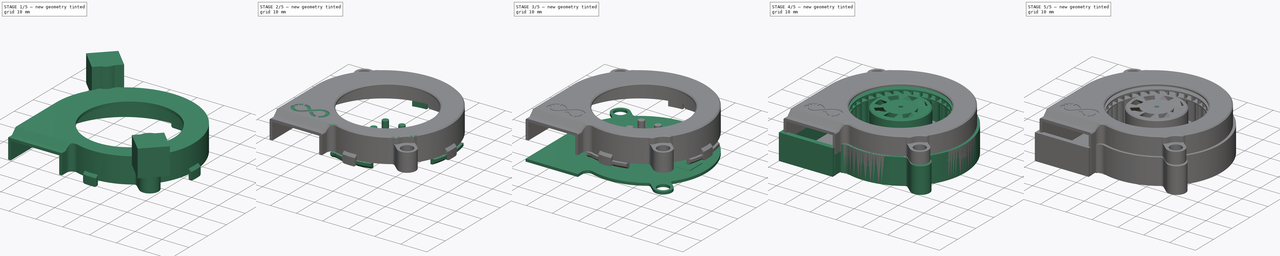
[diagram: build sequence overview — one tinted view per stage of 5, left to right]
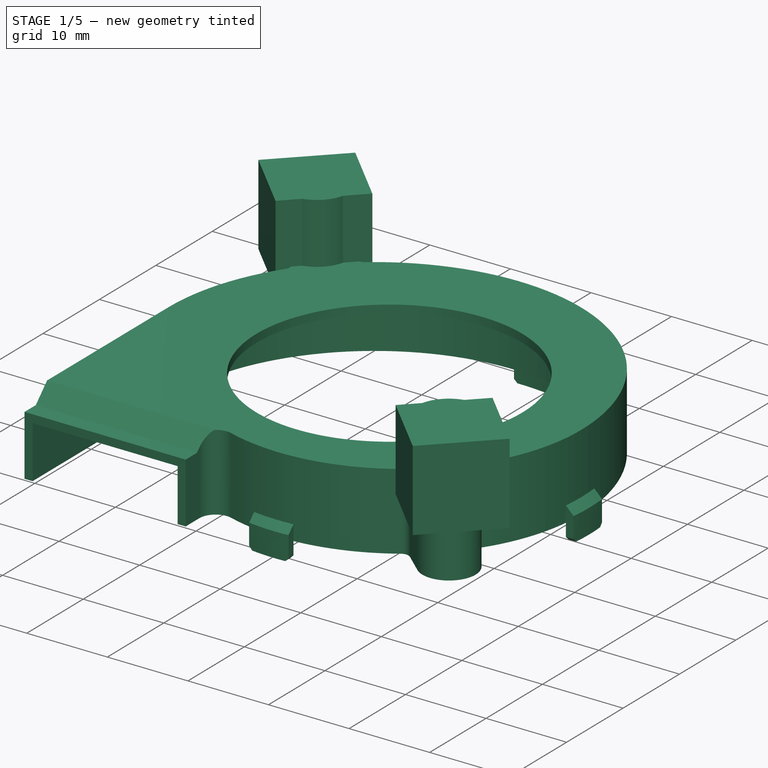
[diagram: stage 1 of 5 — iso view after this stage's code; geometry added in this stage tinted green]
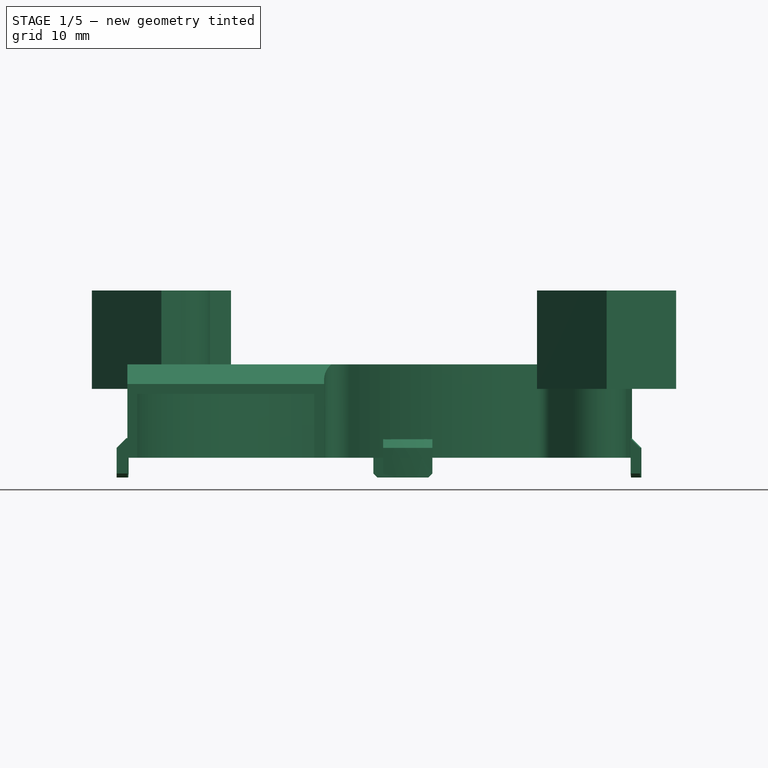
[diagram: stage 1 of 5 — front view after this stage's code; geometry added in this stage tinted green]
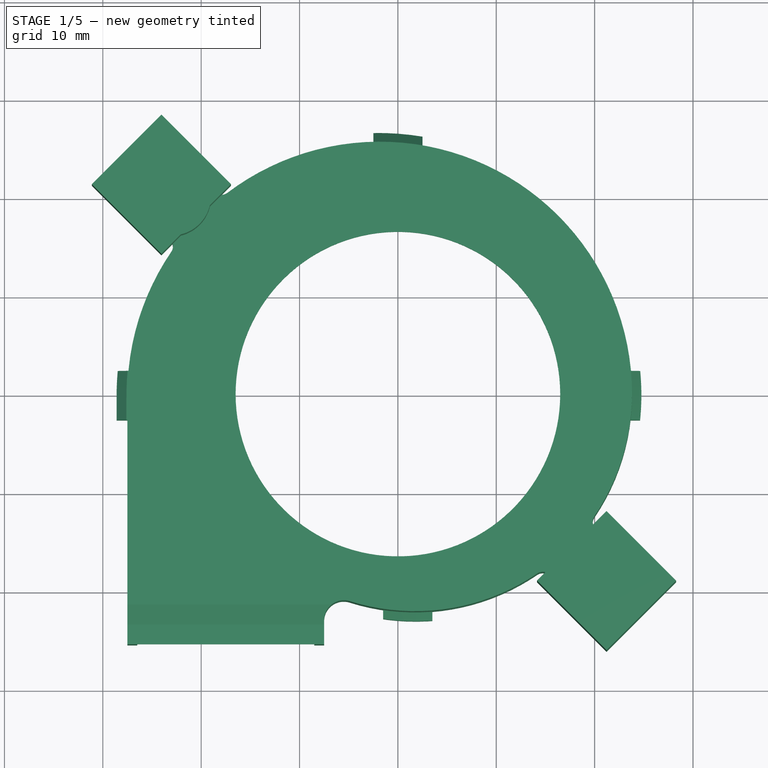
[diagram: stage 1 of 5 — top view after this stage's code; geometry added in this stage tinted green]
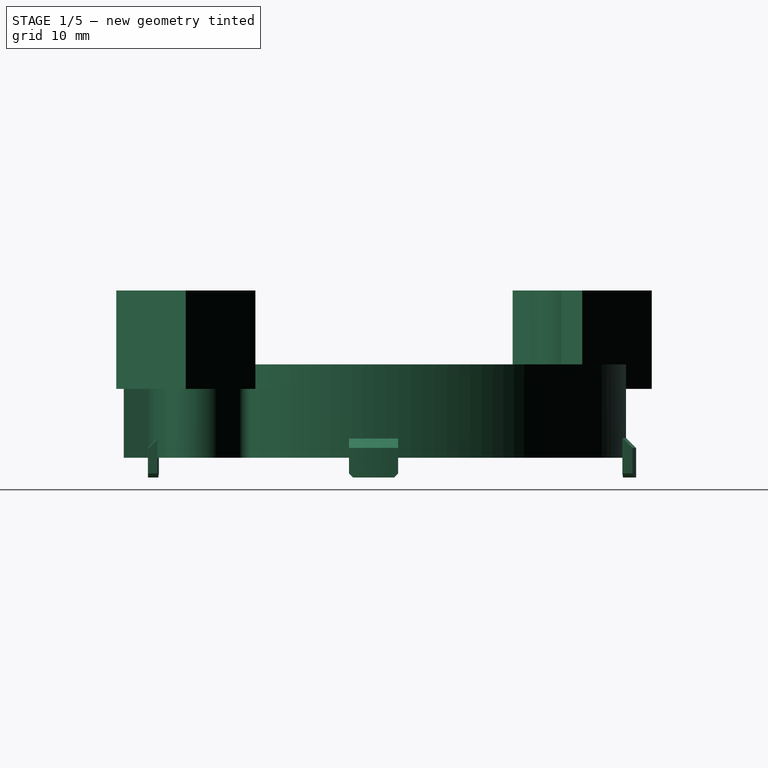
[diagram: stage 1 of 5 — right view after this stage's code; geometry added in this stage tinted green]
FCSTD DOCUMENT  (FreeCAD 0.19R24291 (Git))
Label: 5015-1103-fan
License: Other
LicenseURL: GPL3
objects: Part::Feature×40, Part::Cylinder×34, Part::MultiFuse×24, Part::Box×24, Part::Cut×16, Part::Chamfer×10, Sketcher::SketchObject×8, PartDesign::Plane×6, Part::Extrusion×5, PartDesign::Pad×5, PartDesign::Chamfer×5, Part::MultiCommon×4, PartDesign::Body×3, PartDesign::Pocket×3, PartDesign::PolarPattern×3, Part::Fillet×3, App::Part×2, PartDesign::Fillet×1, Spreadsheet::Sheet×1
note: 208 computed .brp shape members not serialized (recipe doc carries the construction recipe); baked Part::Feature solids carry a one-line shape summary decoded from their .brp

FEATURE [Part::Feature] Part__Feature004_cs003  label="wall-base-profile003"
  Placement = pos=(0,0,3.5) rot=(0,0,1;0rad)
  shape: bbox 51.3 x 51.07 x 3e-07 mm, 0 faces, 0 solids (baked)
FEATURE [Part::Extrusion] Extrude004
  Base = -> Part__Feature004_cs003
  Dir = (0,0,1)
  DirMode = 2
  FaceMakerClass = Part::FaceMakerBullseye
  LengthFwd = 8.5
  LengthRev = 0
  Solid = true
  Symmetric = false
FEATURE [Part::Feature] Fusion001_cs003  label="flat-base-profile003"
  Placement = pos=(0,0,14) rot=(0,0,1;0rad)
  shape: bbox 51.3 x 51.07 x 4e-07 mm, 0 faces, 0 solids (baked)
FEATURE [Part::Extrusion] Extrude005
  Base = -> Fusion001_cs003
  Dir = (0,0,1)
  DirMode = 2
  FaceMakerClass = Part::FaceMakerBullseye
  LengthFwd = 1
  LengthRev = 0
  Placement = pos=(0,0,2) rot=(0,0,1;0rad)
  Solid = true
  Symmetric = false
FEATURE [Part::Cylinder] Cylinder042
  Angle = 360
  AttacherType = Attacher::AttachEngine3D
  Height = 21
  Radius = 16.5
FEATURE [Part::Box] Box006  label="Cube006"
  AttacherType = Attacher::AttachEngine3D
  Height = 10
  Length = 22
  Placement = pos=(-27.5,-25.4,14) rot=(0,0,1;0rad)
  Width = 5
FEATURE [Part::Feature] Fusion001_cs005  label="flat-base-profile005"
  Placement = pos=(0,0,14) rot=(0,0,1;0rad)
  shape: bbox 51.3 x 51.07 x 4e-07 mm, 0 faces, 0 solids (baked)
FEATURE [Part::MultiFuse] Fusion033
  Shapes = -> [Extrude005,Extrude004]
FEATURE [Part::Cut] Cut031
  Base = -> Fusion033
  Tool = -> Cylinder042
FEATURE [Part::Extrusion] Extrude001002
  Base = -> Fusion001_cs005
  Dir = (0,0,1)
  DirMode = 2
  FaceMakerClass = Part::FaceMakerBullseye
  LengthFwd = 3
  LengthRev = 0
  Solid = true
  Symmetric = false
FEATURE [Part::Cylinder] Cylinder046
  Angle = 360
  AttacherType = Attacher::AttachEngine3D
  Height = 10
  Placement = pos=(-23,20,14.5) rot=(0,0,1;0rad)
  Radius = 4
FEATURE [Part::Cylinder] Cylinder047
  Angle = 360
  AttacherType = Attacher::AttachEngine3D
  Height = 10
  Placement = pos=(20,-18,14.5) rot=(0,0,1;0rad)
  Radius = 4
FEATURE [Part::MultiFuse] Fusion035
  Shapes = -> [Cylinder046,Cylinder047]
FEATURE [Part::Box] Box009  label="Cube009"
  AttacherType = Attacher::AttachEngine3D
  Height = 10
  Length = 10
  Placement = pos=(-31.1127,21.2132,14.5) rot=(0,0,-1;0.785398rad)
  Width = 10
FEATURE [Part::Box] Box010  label="Cube010"
  AttacherType = Attacher::AttachEngine3D
  Height = 10
  Length = 10
  Placement = pos=(14.1421,-19.0919,14.5) rot=(0,0,-1;0.785398rad)
  Width = 10
FEATURE [Part::MultiFuse] Fusion036
  Shapes = -> [Box010,Box009]
FEATURE [Part::MultiFuse] Fusion037
  Shapes = -> [Fusion035,Fusion036]
FEATURE [Part::Chamfer] Chamfer004011
  Base = -> Box006
  Edges = 1 edges r=2: [Edge11]
FEATURE [Part::MultiCommon] Common002
  Shapes = -> [Extrude001002,Chamfer004011]
FEATURE [Part::Feature] Common002001
  Placement = pos=(0,-1,1) rot=(0,0,1;0rad)
  shape: bbox 22 x 5 x 3 mm, 9 faces (baked)
FEATURE [Part::MultiFuse] Fusion038
  Shapes = -> [Common002,Cut031]
FEATURE [Part::Cut] Cut032
  Base = -> Fusion038
  Tool = -> Common002001
FEATURE [Part::Feature] Common002003002003  label="ring005"
  Placement = pos=(0,0,2) rot=(0,0,1;0rad)
  shape: bbox 54.41 x 80.12 x 10 mm, 38 faces (baked)
FEATURE [Part::Feature] Common002003002004  label="ring006"
  shape: bbox 54.41 x 80.12 x 10 mm, 37 faces (baked)
FEATURE [Part::MultiFuse] Fusion044  label="top-gasket"
  Shapes = -> [Common002003002003,Common002003002004]
FEATURE [Part::Box] Box011006  label="Cube014"
  AttacherType = Attacher::AttachEngine3D
  Height = 10
  Length = 10
  Placement = pos=(-33,-2.5,0) rot=(0,0,1;0rad)
  Width = 5
FEATURE [Part::Box] Box011009  label="Cube017"
  AttacherType = Attacher::AttachEngine3D
  Height = 10
  Length = 10
  Placement = pos=(20,-2.5,0) rot=(0,0,1;0rad)
  Width = 5
FEATURE [Part::Box] Box011012  label="Cube020"
  AttacherType = Attacher::AttachEngine3D
  Height = 10
  Length = 5
  Placement = pos=(-2.5,20,0) rot=(0,0,1;0rad)
  Width = 10
FEATURE [Part::Box] Box011017  label="Cube025"
  AttacherType = Attacher::AttachEngine3D
  Height = 10
  Length = 5
  Placement = pos=(-1.5,-26,0) rot=(0,0,1;0rad)
  Width = 10
FEATURE [Part::MultiFuse] Fusion048008  label="inner-clip"
  Shapes = -> [Box011006,Box011017,Box011009,Box011012]
FEATURE [Part::MultiCommon] Common002003002006
  Placement = pos=(0,0,5.5) rot=(0,0,1;0rad)
  Refine = true
  Shapes = -> [Fusion048008,Fusion044]
FEATURE [Part::Chamfer] Chamfer004014012
  Base = -> Common002003002006
  Edges = 6 edges r=1: [Edge21,Edge22,Edge43,Edge68,Edge70,Edge100]
FEATURE [Part::Chamfer] Chamfer004014013
  Base = -> Chamfer004014012
  Edges = 8 edges r=0.4: [Edge5,Edge28,Edge40,Edge56,Edge64,Edge81,Edge103,Edge122]
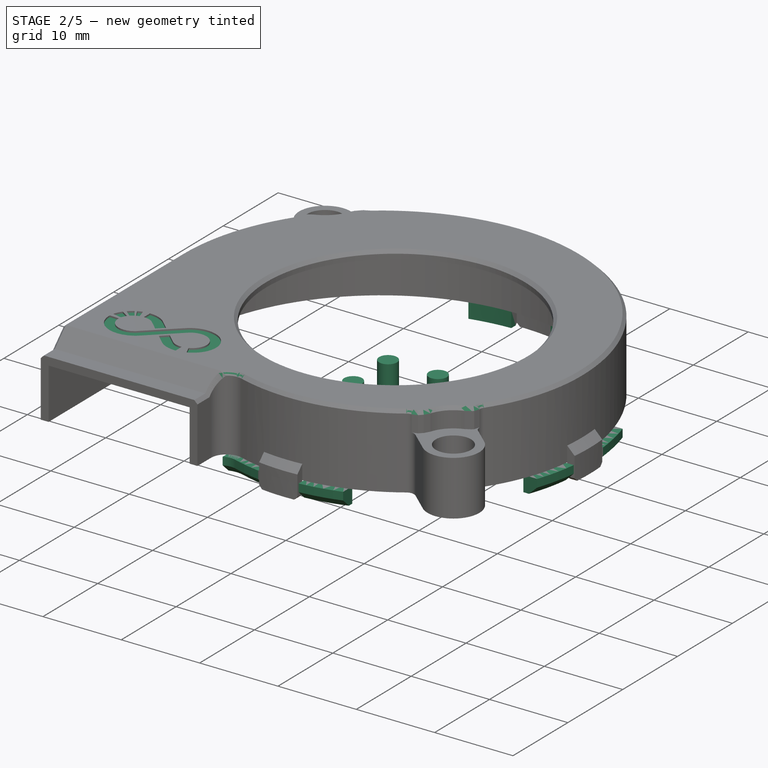
[diagram: stage 2 of 5 — iso view after this stage's code; geometry added in this stage tinted green]
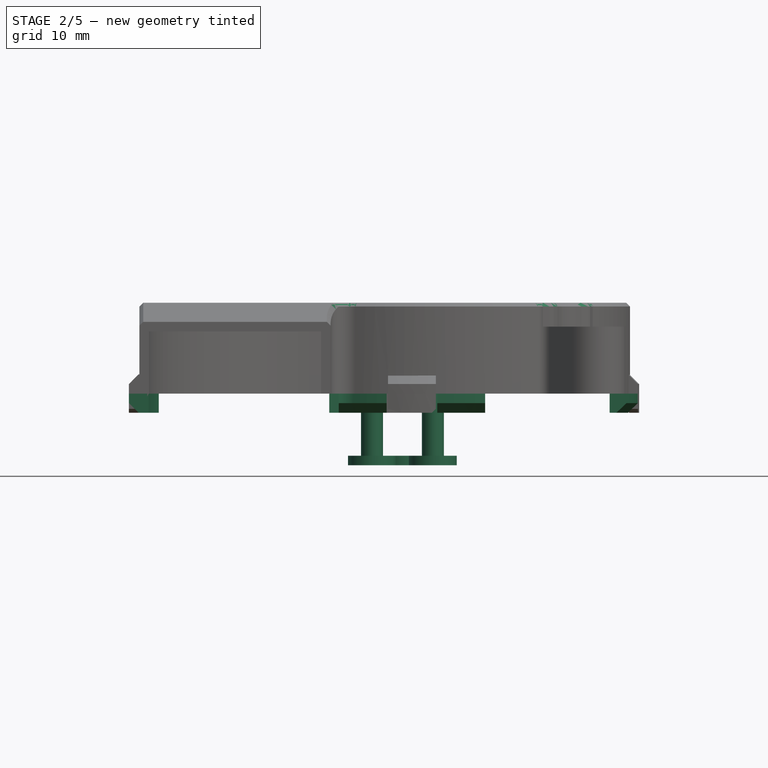
[diagram: stage 2 of 5 — front view after this stage's code; geometry added in this stage tinted green]
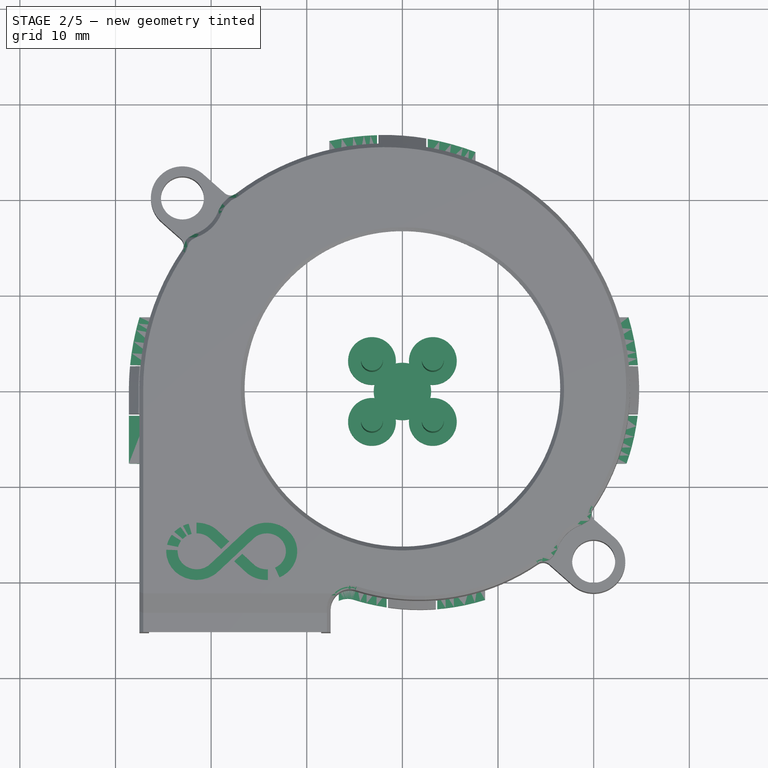
[diagram: stage 2 of 5 — top view after this stage's code; geometry added in this stage tinted green]
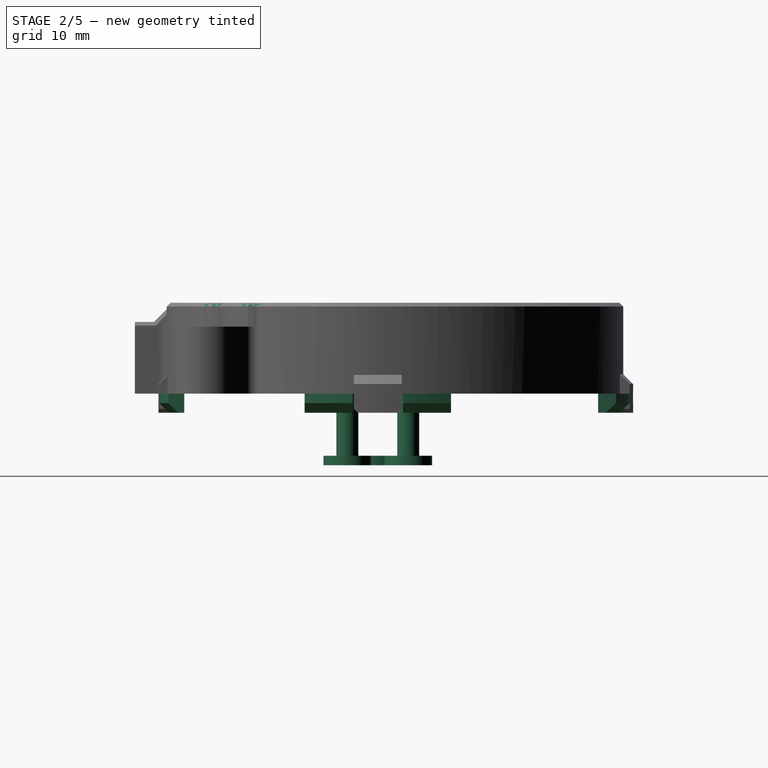
[diagram: stage 2 of 5 — right view after this stage's code; geometry added in this stage tinted green]
FEATURE [Part::Cut] Cut033
  Base = -> Cut032
  Refine = true
  Tool = -> Fusion037
FEATURE [Part::Chamfer] Chamfer004012
  Base = -> Cut033
  Edges = 32 edges r=0.4: [Edge67,Edge71,Edge72,Edge74,Edge76,Edge77,Edge78,Edge81,Edge83,Edge84,Edge85,Edge86,Edge87,Edge88,Edge89,Edge90,Edge91,Edge92,Edge93,Edge94,Edge95,Edge96,Edge97,Edge98,Edge99,Edge101,Edge103,Edge104,Edge106,Edge108,Edge110,Edge112]
FEATURE [Part::Fillet] Fillet001001017
  Base = -> Chamfer004012
  Edges = 2 edges r=0.2: [Edge7,Edge52]
FEATURE [Part::Feature] Common002003002001  label="ring003"
  shape: bbox 54.41 x 80.12 x 10 mm, 38 faces (baked)
FEATURE [Part::Feature] Common002003002002  label="ring004"
  Placement = pos=(0,0,2) rot=(0,0,1;0rad)
  shape: bbox 54.41 x 80.12 x 10 mm, 37 faces (baked)
FEATURE [Part::MultiFuse] Fusion043  label="bottom-gasket"
  Shapes = -> [Common002003002002,Common002003002001]
FEATURE [Part::Feature] Chamfer004014001
  shape: bbox 51.3 x 51.07 x 7.501 mm, 108 faces (baked)
FEATURE [Part::Feature] Fillet001001017001
  shape: bbox 51.3 x 51.07 x 9.733 mm, 82 faces (baked)
FEATURE [Part::Cylinder] Cylinder050
  Angle = 360
  AttacherType = Attacher::AttachEngine3D
  Height = 1
  Placement = pos=(-3.18198,3.18198,0) rot=(0,0,1;0.785398rad)
  Radius = 2.5
FEATURE [Part::Cylinder] Cylinder051
  Angle = 360
  AttacherType = Attacher::AttachEngine3D
  Height = 1
  Placement = pos=(3.18198,3.18198,0) rot=(0,0,-1;0.785398rad)
  Radius = 2.5
FEATURE [Part::Cylinder] Cylinder052
  Angle = 360
  AttacherType = Attacher::AttachEngine3D
  Height = 1
  Placement = pos=(-3.18198,-3.18198,0) rot=(0,0,1;3.92699rad)
  Radius = 2.5
FEATURE [Part::Cylinder] Cylinder053
  Angle = 360
  AttacherType = Attacher::AttachEngine3D
  Height = 1
  Placement = pos=(3.18198,-3.18198,0) rot=(0,0,1;3.92699rad)
  Radius = 2.5
FEATURE [Part::Cylinder] Cylinder054
  Angle = 360
  AttacherType = Attacher::AttachEngine3D
  Height = 10
  Placement = pos=(3.18198,-3.18198,0) rot=(0,0,1;3.92699rad)
  Radius = 1.15
FEATURE [Part::Cylinder] Cylinder055
  Angle = 360
  AttacherType = Attacher::AttachEngine3D
  Height = 10
  Placement = pos=(-3.18198,-3.18198,0) rot=(0,0,1;3.92699rad)
  Radius = 1.15
FEATURE [Part::Cylinder] Cylinder056
  Angle = 360
  AttacherType = Attacher::AttachEngine3D
  Height = 10
  Placement = pos=(3.18198,3.18198,0) rot=(0,0,-1;0.785398rad)
  Radius = 1.15
FEATURE [Part::Cylinder] Cylinder057
  Angle = 360
  AttacherType = Attacher::AttachEngine3D
  Height = 10
  Placement = pos=(-3.18198,3.18198,0) rot=(0,0,1;0.785398rad)
  Radius = 1.15
FEATURE [Part::MultiFuse] Fusion048005
  Shapes = -> [Cylinder057,Cylinder056,Cylinder055,Cylinder054,Cylinder053,Cylinder052,Cylinder051,Cylinder050]
FEATURE [Part::Cylinder] Cylinder058
  Angle = 360
  AttacherType = Attacher::AttachEngine3D
  Height = 1
  Radius = 3
FEATURE [Part::MultiFuse] Fusion048006  label="bolt-slot-wider"
  Shapes = -> [Fusion048005,Cylinder058]
FEATURE [Part::Cut] Cut036006002001008  label="top-r1"
  Base = -> Fillet001001017
  Tool = -> snakeoil_logo_1_001001_solid
FEATURE [Part::Box] Box011007  label="Cube015"
  AttacherType = Attacher::AttachEngine3D
  Height = 10
  Length = 10
  Placement = pos=(-33,2.65,0) rot=(0,0,1;0rad)
  Width = 5
FEATURE [Part::Box] Box011008  label="Cube016"
  AttacherType = Attacher::AttachEngine3D
  Height = 10
  Length = 10
  Placement = pos=(-33,-7.65,0) rot=(0,0,1;0rad)
  Width = 5
FEATURE [Part::Box] Box011010  label="Cube018"
  AttacherType = Attacher::AttachEngine3D
  Height = 10
  Length = 10
  Placement = pos=(20,2.65,0) rot=(0,0,1;0rad)
  Width = 5
FEATURE [Part::Box] Box011011  label="Cube019"
  AttacherType = Attacher::AttachEngine3D
  Height = 10
  Length = 10
  Placement = pos=(20,-7.65,0) rot=(0,0,1;0rad)
  Width = 5
FEATURE [Part::Box] Box011013  label="Cube021"
  AttacherType = Attacher::AttachEngine3D
  Height = 10
  Length = 5
  Placement = pos=(-7.65,20,0) rot=(0,0,1;0rad)
  Width = 10
FEATURE [Part::Box] Box011014  label="Cube022"
  AttacherType = Attacher::AttachEngine3D
  Height = 10
  Length = 5
  Placement = pos=(2.65,20,0) rot=(0,0,1;0rad)
  Width = 10
FEATURE [Part::Box] Box011015  label="Cube023"
  AttacherType = Attacher::AttachEngine3D
  Height = 10
  Length = 5
  Placement = pos=(3.65,-26,0) rot=(0,0,1;0rad)
  Width = 10
FEATURE [Part::Box] Box011016  label="Cube024"
  AttacherType = Attacher::AttachEngine3D
  Height = 10
  Length = 5
  Placement = pos=(-6.65,-26,0) rot=(0,0,1;0rad)
  Width = 10
FEATURE [Part::MultiFuse] Fusion048009  label="outer-clip"
  Placement = pos=(0,0,-8) rot=(0,0,1;0rad)
  Shapes = -> [Box011016,Box011007,Box011008,Box011010,Box011011,Box011013,Box011014,Box011015]
FEATURE [Part::MultiCommon] Common002003002005
  Placement = pos=(0,0,5.5) rot=(0,0,1;0rad)
  Refine = true
  Shapes = -> [Fusion048009,Fusion043]
FEATURE [Part::Chamfer] Chamfer004014011
  Base = -> Common002003002005
  Edges = 8 edges r=1: [Edge9,Edge23,Edge35,Edge51,Edge63,Edge71,Edge83,Edge99]
FEATURE [Part::MultiFuse] Fusion048011  label="top-fit-r1"
  Shapes = -> [Chamfer004014013,Cut036006002001008]
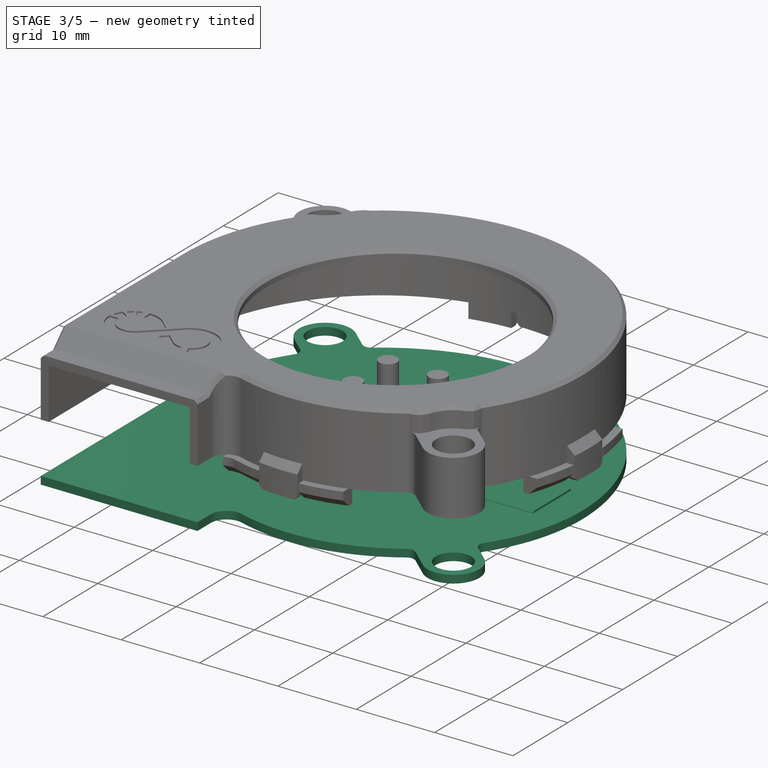
[diagram: stage 3 of 5 — iso view after this stage's code; geometry added in this stage tinted green]
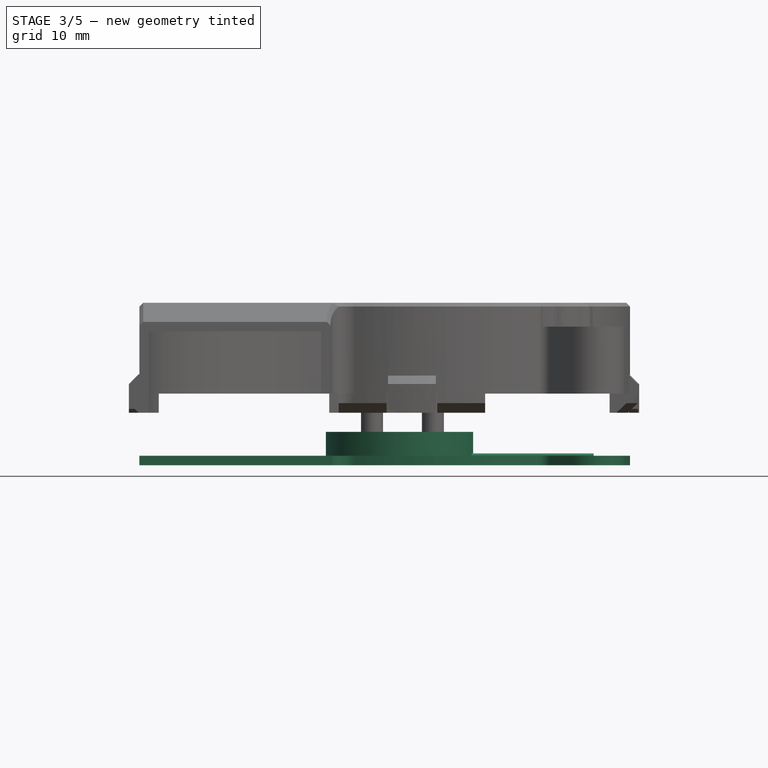
[diagram: stage 3 of 5 — front view after this stage's code; geometry added in this stage tinted green]
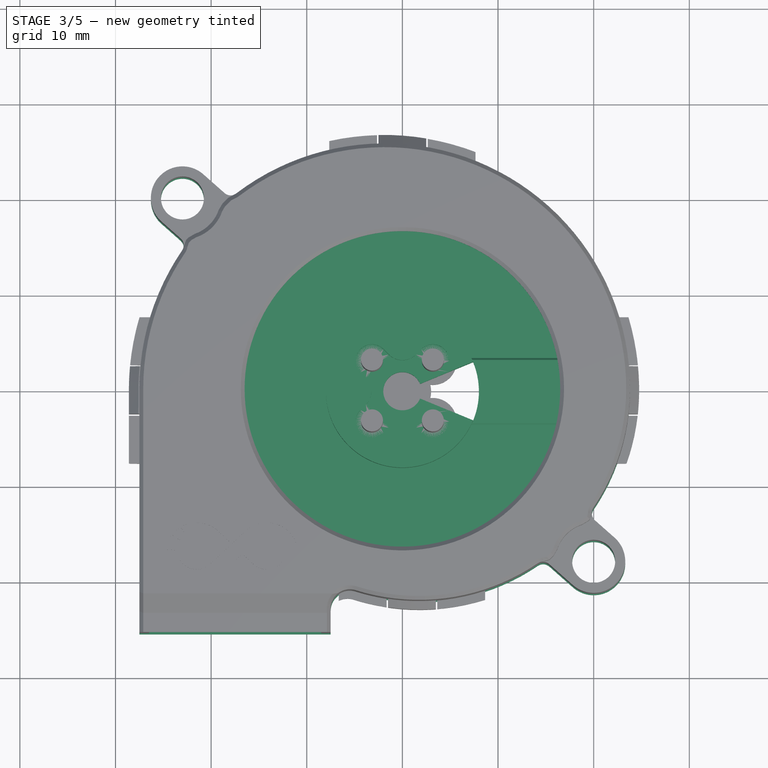
[diagram: stage 3 of 5 — top view after this stage's code; geometry added in this stage tinted green]
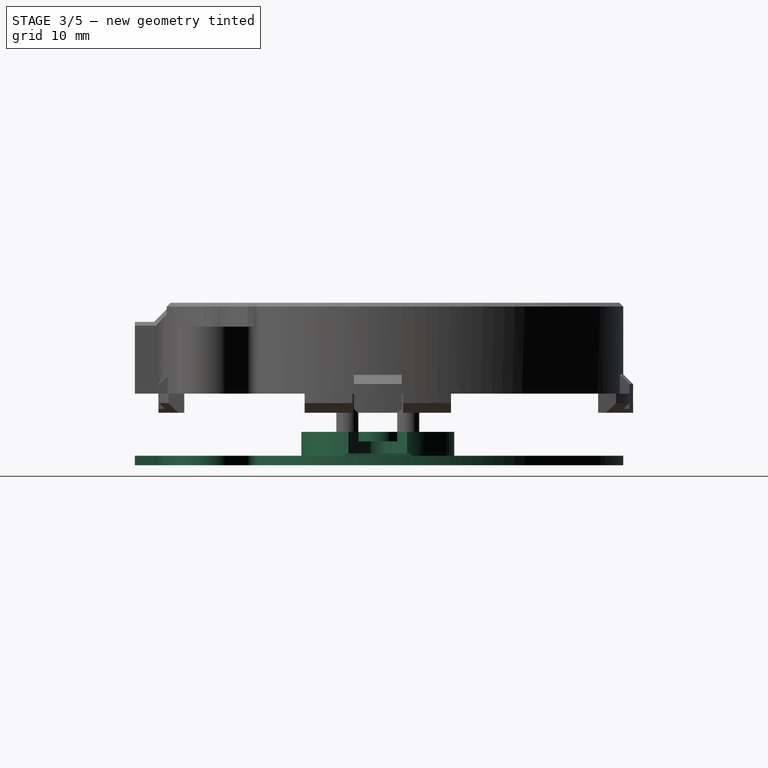
[diagram: stage 3 of 5 — right view after this stage's code; geometry added in this stage tinted green]
FEATURE [Part::Feature] Fusion001_cs  label="flat-base-profile"
  shape: bbox 51.3 x 51.07 x 4e-07 mm, 0 faces, 0 solids (baked)
FEATURE [Part::Feature] Fusion001_cs001  label="flat-base-profile001"
  shape: bbox 51.3 x 51.07 x 4e-07 mm, 0 faces, 0 solids (baked)
FEATURE [Part::Extrusion] Extrude  label="bottom-plate"
  Base = -> Fusion001_cs001
  Dir = (0,0,1)
  DirMode = 2
  FaceMakerClass = Part::FaceMakerBullseye
  LengthFwd = 1
  LengthRev = 0
  Solid = true
  Symmetric = false
FEATURE [Part::Cylinder] Cylinder
  Angle = 360
  AttacherType = Attacher::AttachEngine3D
  Height = 3.5
  Radius = 8
FEATURE [Part::Feature] Body002002003002  label="1103-center002"
  Placement = pos=(0,0,2.5) rot=(0,0,-1;0.785398rad)
  shape: bbox 9.764 x 9.764 x 1.5 mm, 16 faces (baked)
FEATURE [Part::Cylinder] Cylinder025
  Angle = 360
  AttacherType = Attacher::AttachEngine3D
  Height = 10
  Radius = 2
FEATURE [Part::Cylinder] Cylinder026
  Angle = 360
  AttacherType = Attacher::AttachEngine3D
  Height = 10
  Placement = pos=(0,4.5,0) rot=(0,0,1;0rad)
  Radius = 1
FEATURE [Part::Cylinder] Cylinder027
  Angle = 360
  AttacherType = Attacher::AttachEngine3D
  Height = 10
  Placement = pos=(-4.5,0,0) rot=(0,0,1;0rad)
  Radius = 1
FEATURE [Part::Cylinder] Cylinder028
  Angle = 360
  AttacherType = Attacher::AttachEngine3D
  Height = 10
  Placement = pos=(4.5,0,0) rot=(0,0,1;0rad)
  Radius = 1
FEATURE [Part::Cylinder] Cylinder029
  Angle = 360
  AttacherType = Attacher::AttachEngine3D
  Height = 10
  Placement = pos=(0,-4.5,0) rot=(0,0,1;0rad)
  Radius = 1
FEATURE [Part::Cylinder] Cylinder030
  Angle = 360
  AttacherType = Attacher::AttachEngine3D
  Height = 1
  Placement = pos=(0,-4.5,0) rot=(0,0,1;0rad)
  Radius = 2.15
FEATURE [Part::Cylinder] Cylinder031
  Angle = 360
  AttacherType = Attacher::AttachEngine3D
  Height = 1
  Placement = pos=(4.5,0,0) rot=(0,0,1;0rad)
  Radius = 2.15
FEATURE [Part::Cylinder] Cylinder032
  Angle = 360
  AttacherType = Attacher::AttachEngine3D
  Height = 1
  Placement = pos=(-4.5,0,0) rot=(0,0,1;0rad)
  Radius = 2.15
FEATURE [Part::Cylinder] Cylinder033
  Angle = 360
  AttacherType = Attacher::AttachEngine3D
  Height = 1
  Placement = pos=(0,4.5,0) rot=(0,0,1;0rad)
  Radius = 2.15
FEATURE [Part::MultiFuse] Fusion017
  Placement = pos=(0,0,0) rot=(0,0,-1;0.785398rad)
  Shapes = -> [Cylinder033,Cylinder032,Cylinder031,Cylinder030,Cylinder029,Cylinder028,Cylinder027,Cylinder026,Cylinder025]
FEATURE [Part::Cylinder] Cylinder034
  Angle = 45
  AttacherType = Attacher::AttachEngine3D
  Height = 4
  Placement = pos=(0,0,0) rot=(0,0,-1;0.392699rad)
  Radius = 8
FEATURE [Part::MultiFuse] Fusion
  Shapes = -> [Cylinder,Extrude]
FEATURE [Part::Cut] Cut
  Base = -> Fusion
  Tool = -> Body002002003002
FEATURE [Part::Cut] Cut019
  Base = -> Cut
  Tool = -> Fusion017
FEATURE [Part::Box] Box  label="Cube"
  AttacherType = Attacher::AttachEngine3D
  Height = 0.75
  Length = 15.1
  Placement = pos=(7.4,-3,0) rot=(0,0,1;0rad)
  Width = 6
FEATURE [Part::Feature] Extrude001001  label="bottom-wall001"
  Placement = pos=(0,0,-1) rot=(0,0,1;0rad)
  shape: bbox 51.3 x 51.07 x 6.5 mm, 35 faces (baked)
FEATURE [Part::Box] Box003  label="Cube003"
  AttacherType = Attacher::AttachEngine3D
  Height = 1
  Length = 2
  Placement = pos=(21,-3,0) rot=(0,0,1;0rad)
  Width = 4.5
FEATURE [Part::Box] Box004  label="Cube004"
  AttacherType = Attacher::AttachEngine3D
  Height = 1
  Length = 13
  Placement = pos=(21,-3,0) rot=(0,0,1;0rad)
  Width = 4.5
FEATURE [PartDesign::Plane] DatumPlane009
  AttachmentOffset = pos=(0,0,15) rot=(0,0,1;0rad)
  Length = 60
  MapMode = 5
  Placement = pos=(0,0,15) rot=(0,0,1;0rad)
  ResizeMode = 0
  Support = -> [XY_Plane007]
  Width = 60
FEATURE [Sketcher::SketchObject] Sketch019
  FullyConstrained = true
  MapMode = 5
  Placement = pos=(0,0,15) rot=(0,0,1;0rad)
  Support = -> [DatumPlane009]
  expr: Constraints[11] = <<args>>.coolingHoleAngle
  expr: Constraints[10] = <<args>>.coolingHoleAngle / 2
  expr: Constraints[2] = <<args>>.motorSlotInnerRadius - 3.5
  expr: Constraints[3] = <<args>>.motorSlotInnerRadius - 0.5
  sketch-geometry (6):
    g0: ArcOfCircle CenterX=0 CenterY=0 CenterZ=0 NormalX=0 NormalY=0 NormalZ=1 AngleXU=0 Radius=8.5 StartAngle=6.19592 EndAngle=6.37045
    g1: ArcOfCircle CenterX=0 CenterY=0 CenterZ=0 NormalX=0 NormalY=0 NormalZ=1 AngleXU=0 Radius=5.5 StartAngle=6.19592 EndAngle=6.37045
    g2: LineSegment StartX=5.47907 StartY=0.479357 StartZ=0 EndX=8.46765 EndY=0.740824 EndZ=0
    g3: LineSegment StartX=5.47907 StartY=-0.479357 StartZ=0 EndX=8.46765 EndY=-0.740824 EndZ=0
    g4: LineSegment StartX=0 StartY=0 StartZ=0 EndX=5.47907 EndY=-0.479357 EndZ=0
    g5: LineSegment StartX=0 StartY=0 StartZ=0 EndX=5.47907 EndY=0.479357 EndZ=0
  constraints (16):
    c: Coincident(g0,g-1)
    c: Coincident(g1,g0)
    c: Radius(g1) = 5.5
    c: Radius(g0) = 8.5
    c: Coincident(g4,g0)
    c: Coincident(g4,g3)
    c: Coincident(g5,g0)
    c: Coincident(g5,g2)
    c: Parallel(g5,g2)
    c: Parallel(g4,g3)
    c: Angle(g-1,g5) = 0.0872665
    c: Angle(g4,g5) = 0.174533
    c: Coincident(g1,g3)
    c: Coincident(g1,g2)
    c: Coincident(g0,g3)
    c: Coincident(g0,g2)
FEATURE [Part::Box] Box002  label="Cube002"
  AttacherType = Attacher::AttachEngine3D
  Height = 0.25
  Length = 13
  Placement = pos=(7,-3.5,1) rot=(0,0,1;0rad)
  Width = 7
FEATURE [Part::Chamfer] Chamfer
  Base = -> Box002
  Edges = 2 edges r=0.2: [Edge10,Edge12]
FEATURE [Part::Cut] Cut025
  Base = -> Cut019
  Tool = -> Box
FEATURE [Part::MultiFuse] Fusion028
  Shapes = -> [Cut025,Chamfer]
FEATURE [Part::Cut] Cut026
  Base = -> Fusion028
  Tool = -> Cylinder034
FEATURE [Part::MultiCommon] Common
  Shapes = -> [Box004,Extrude001001]
FEATURE [Part::MultiFuse] Fusion030
  Shapes = -> [Box003,Common]
FEATURE [Part::Fillet] Fillet001001016
  Base = -> Fusion030
  Edges = 2 edges r=0.5: [Edge3,Edge30]
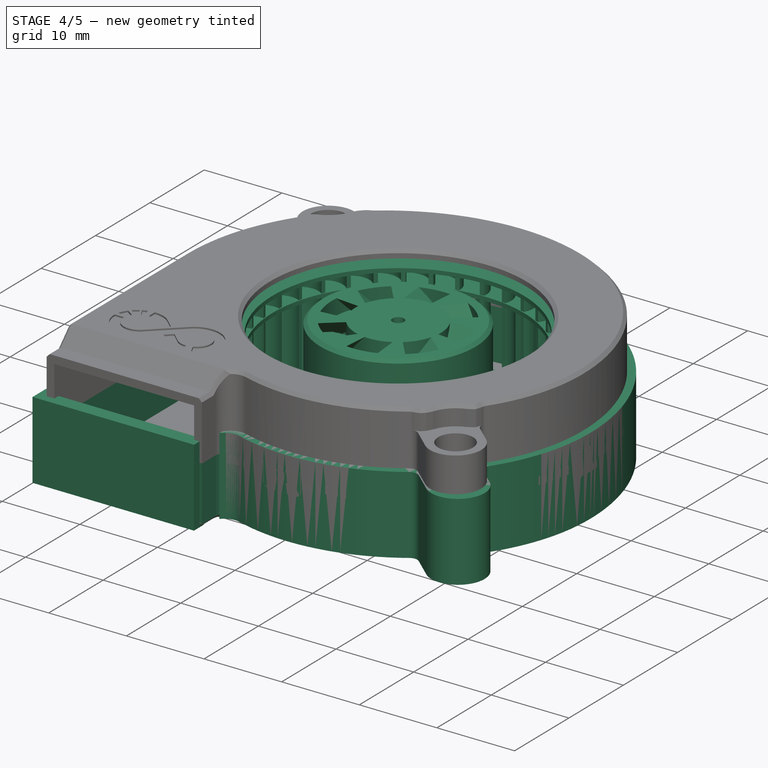
[diagram: stage 4 of 5 — iso view after this stage's code; geometry added in this stage tinted green]
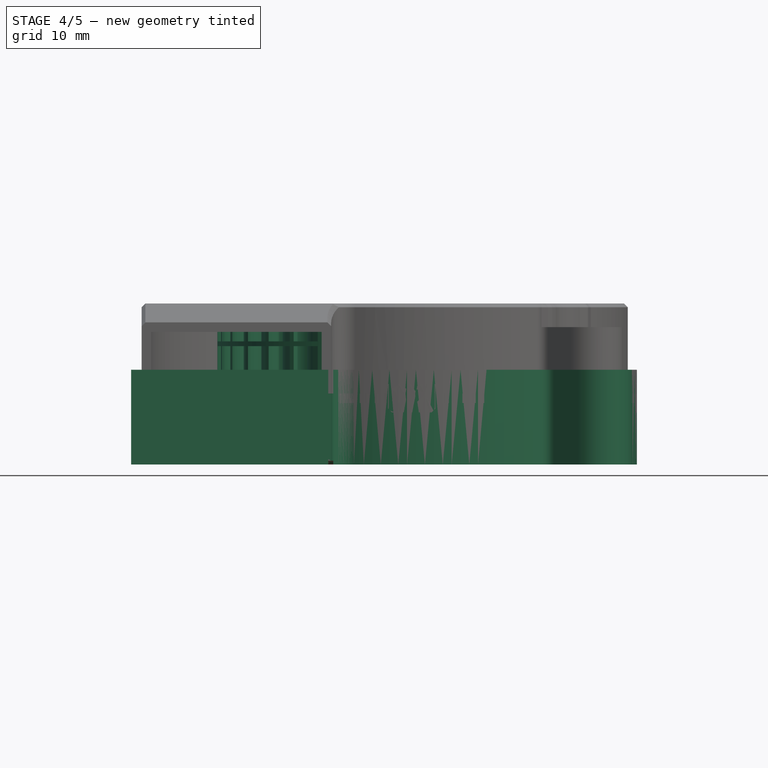
[diagram: stage 4 of 5 — front view after this stage's code; geometry added in this stage tinted green]
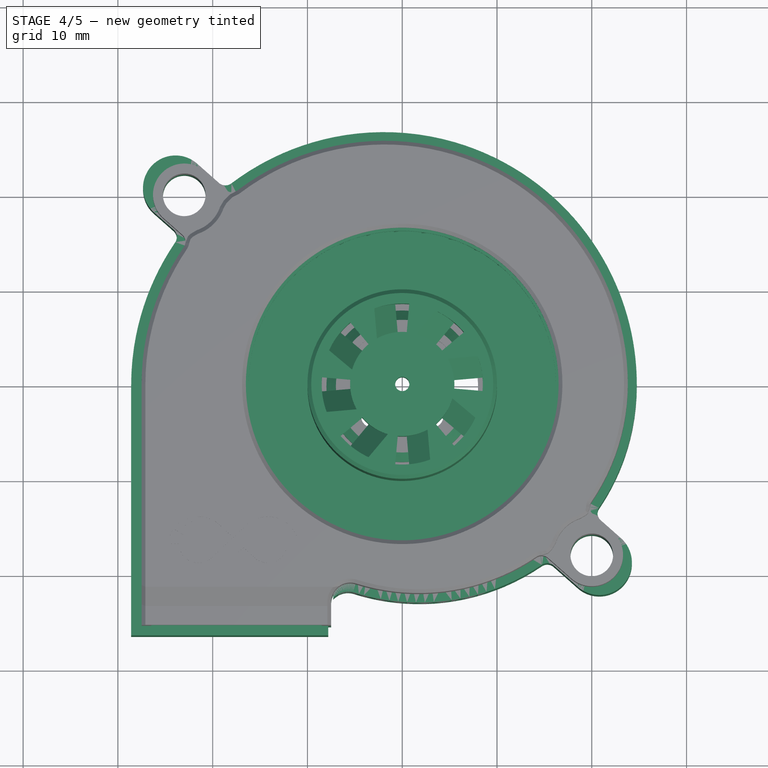
[diagram: stage 4 of 5 — top view after this stage's code; geometry added in this stage tinted green]
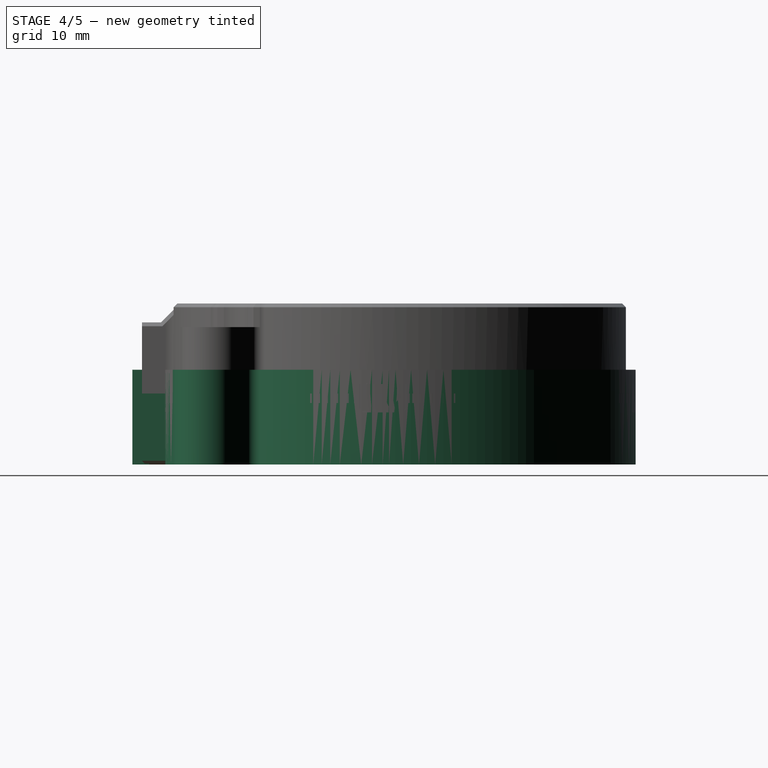
[diagram: stage 4 of 5 — right view after this stage's code; geometry added in this stage tinted green]
FEATURE [Spreadsheet::Sheet] Spreadsheet  label="args"
  cells = A1=Motor hub; A2=Motor slot inner radius; B2(motorSlotInnerRadius)=9; C2=1; A3=Motor slot outer radius; B3(motorSlotOuterRadius)=10; A4=Motor slot inner heigh; B4(motorSlotInnerHeigh)=11; A5=Motor slot outer heigh; B5(motorSlotOuterHeigh)=14.5; A6=Motor axis radius; B6(motorAxisRadius)=0.75; A7=Motor mounting screw radius; B7(motorScrewRadius)=0.9; A8=Resin overhang offset; B8(resinOverhangOffset)=1.25; A9=Motor cooling hole angle; B9(coolingHoleAngle)=10; A10=Motor cooling hole count; B10(motorCoolingHoleCount)=8; A13=Outer Centrifugal blades (common params); A14=Blade outer radius; B14(bladeOuterRadius)=19.5; A15=Blade inner radius; B15(bladeInnerRadius)=16.28; A16=Blade heigh; B16(bladeHeigh)=12; A17=Blade blade count; B17(bladeCount)=35; A18=Blade retainer ring width; B18(bladeReainerRingWidth)=3.3; A19=Blade retainer ring height; B19(bladeReainerRingHeigh)=0.5; A20=Blade base heigh; B20(bladeBaseHeigh)=1; A21=Airfoil blade params; A22=airfoil blade angle; B22(airfoilBladeAngle)=31.38; A23=airfoild blade inlet angle; B23(airfoilBladeInletAngle)=77.5; A24=airfoil bade outlet angle; B24(airFoilBladeOutletAngle)=156.3; A25=airfoil blade back angle; B25(airFoilBladeBackAngle)=185; A26=Curve blade params; A27=curve blade inlet angle; B27(curveBladelInletAngle)=77.5; A28=curveblade oulet angle; B28(curveBladeOutletAngle)=156.3; A29=curve blade angle; B29(curveBladeAngle)=31.38; A30=curve blade width; B30(curvelBladeWidth)=0.5
FEATURE [PartDesign::Plane] DatumPlane003  label="Z0"
  Length = 60
  MapMode = 5
  ResizeMode = 0
  Support = -> [XY_Plane007]
  Width = 60
FEATURE [Sketcher::SketchObject] Sketch011
  FullyConstrained = true
  MapMode = 5
  Support = -> [DatumPlane003]
  expr: Constraints[1] = Spreadsheet.motorSlotOuterRadius
  sketch-geometry (1):
    g0: Circle CenterX=0 CenterY=0 CenterZ=0 NormalX=0 NormalY=0 NormalZ=1 AngleXU=0 Radius=10
  constraints (2):
    c: Coincident(g0,g-1)
    c: Radius(g0) = 10
FEATURE [PartDesign::Pad] Pad007
  Direction = (1,1,1)
  Length = 14.5
  Length2 = 100
  Profile = -> Sketch011
  Type = 0
  expr: Length = Spreadsheet.motorSlotOuterHeigh
FEATURE [PartDesign::Chamfer] Chamfer008
  Angle = 45
  Base = -> Pad007 [Edge3]
  BaseFeature = -> Pad007
  ChamferType = 0
  FlipDirection = false
  Size = 0.4
  Size2 = 1
  SupportTransform = false
FEATURE [PartDesign::Plane] DatumPlane004  label="Z11"
  AttachmentOffset = pos=(0,0,11) rot=(0,0,1;0rad)
  Length = 60
  MapMode = 5
  Placement = pos=(0,0,11) rot=(0,0,1;0rad)
  ResizeMode = 0
  Support = -> [XY_Plane007]
  Width = 60
FEATURE [Sketcher::SketchObject] Sketch012
  FullyConstrained = true
  MapMode = 5
  Placement = pos=(0,0,11) rot=(0,0,1;0rad)
  Support = -> [DatumPlane004]
  expr: Constraints[1] = <<args>>.motorAxisRadius
  sketch-geometry (1):
    g0: Circle CenterX=0 CenterY=0 CenterZ=0 NormalX=0 NormalY=0 NormalZ=1 AngleXU=0 Radius=0.75
  constraints (2):
    c: Coincident(g0,g-1)
    c: Radius(g0) = 0.75
FEATURE [PartDesign::Pocket] Pocket
  BaseFeature = -> Chamfer008
  Length = 5
  Length2 = 100
  Profile = -> Sketch012
  Reversed = true
  Type = 1
FEATURE [Sketcher::SketchObject] Sketch013
  FullyConstrained = true
  MapMode = 5
  Support = -> [DatumPlane003]
  expr: Constraints[1] = Spreadsheet.motorSlotInnerRadius
  sketch-geometry (1):
    g0: Circle CenterX=0 CenterY=0 CenterZ=0 NormalX=0 NormalY=0 NormalZ=1 AngleXU=0 Radius=9
  constraints (2):
    c: Coincident(g0,g-1)
    c: Radius(g0) = 9
FEATURE [PartDesign::Pocket] Pocket001
  BaseFeature = -> Pocket
  Length = 12.25
  Length2 = 100
  Profile = -> Sketch013
  Reversed = true
  Type = 0
  expr: Length = Spreadsheet.motorSlotInnerHeigh + <<args>>.resinOverhangOffset
FEATURE [PartDesign::Plane] DatumPlane005  label="Z014"
  Length = 60
  MapMode = 5
  ResizeMode = 0
  Support = -> [XY_Plane008]
  Width = 60
FEATURE [Sketcher::SketchObject] Sketch015
  FullyConstrained = true
  MapMode = 5
  Support = -> [DatumPlane005]
  expr: Constraints[2] = <<args>>.motorSlotInnerRadius
  expr: Constraints[1] = Spreadsheet.bladeOuterRadius
  sketch-geometry (2):
    g0: Circle CenterX=0 CenterY=0 CenterZ=0 NormalX=0 NormalY=0 NormalZ=1 AngleXU=0 Radius=19.5
    g1: Circle CenterX=0 CenterY=0 CenterZ=0 NormalX=0 NormalY=0 NormalZ=1 AngleXU=0 Radius=9
  constraints (4):
    c: Coincident(g0,g-1)
    c: Radius(g0) = 19.5
    c: Radius(g1) = 9
    c: Coincident(g0,g1)
FEATURE [PartDesign::Pad] Pad008
  Direction = (1,1,1)
  Length = 1
  Length2 = 100
  Profile = -> Sketch015
  Type = 0
  expr: Length = Spreadsheet.bladeBaseHeigh
FEATURE [PartDesign::Plane] DatumPlane006  label="z-base"
  AttachmentOffset = pos=(0,0,1) rot=(0,0,1;0rad)
  Length = 60
  MapMode = 5
  Placement = pos=(0,0,1) rot=(0,0,1;0rad)
  ResizeMode = 0
  Support = -> [XY_Plane008]
  Width = 60
  expr: .AttachmentOffset.Base.z = Spreadsheet.bladeBaseHeigh
FEATURE [Sketcher::SketchObject] Sketch016
  FullyConstrained = false
  MapMode = 5
  Placement = pos=(0,0,1) rot=(0,0,1;0rad)
  Support = -> [DatumPlane006]
  expr: Constraints[2] = Spreadsheet.bladeOuterRadius
  expr: Constraints[7] = Spreadsheet.curveBladeAngle
  expr: Constraints[15] = Spreadsheet.curveBladeOutletAngle
  expr: Constraints[19] = Spreadsheet.curveBladelInletAngle
  expr: Constraints[3] = Spreadsheet.bladeInnerRadius
  expr: Constraints[26] = Spreadsheet.curvelBladeWidth
  expr: Constraints[24] = Spreadsheet.curvelBladeWidth
  expr: Constraints[25] = Spreadsheet.curvelBladeWidth
  sketch-geometry (13):
    g0: Circle CenterX=0 CenterY=0 CenterZ=0 NormalX=0 NormalY=0 NormalZ=1 AngleXU=0 Radius=19.5
    g1: Circle CenterX=0 CenterY=0 CenterZ=0 NormalX=0 NormalY=0 NormalZ=1 AngleXU=0 Radius=16.28
    g2: LineSegment StartX=0 StartY=19.5 StartZ=0 EndX=2.0424 EndY=16.1514 EndZ=0
    g3: LineSegment StartX=0 StartY=0 StartZ=0 EndX=2.0424 EndY=16.1514 EndZ=0
    g4: LineSegment StartX=0 StartY=19.5 StartZ=0 EndX=0.740463 EndY=19.175 EndZ=0
    g5: ArcOfCircle CenterX=-0.229565 CenterY=16.9652 CenterZ=0 NormalX=0 NormalY=0 NormalZ=1 AngleXU=0 Radius=2.41332 StartAngle=5.93923 EndAngle=7.44034
    g6: LineSegment StartX=0 StartY=19.5 StartZ=0 EndX=-1.03403 EndY=19.5 EndZ=0
    g7: LineSegment StartX=2.0424 StartY=16.1514 StartZ=0 EndX=2.72793 EndY=18.0652 EndZ=0
    g8: LineSegment StartX=2.0424 StartY=16.1514 StartZ=0 EndX=5.15036 EndY=15.7584 EndZ=0
    g9: LineSegment StartX=0.5 StartY=19.5 StartZ=0 EndX=1.24046 EndY=19.175 EndZ=0
    g10: ArcOfCircle CenterX=0.270435 CenterY=16.9652 CenterZ=0 NormalX=0 NormalY=0 NormalZ=1 AngleXU=0 Radius=2.41332 StartAngle=5.93923 EndAngle=7.44034
    g11: LineSegment StartX=0 StartY=19.5 StartZ=0 EndX=0.5 EndY=19.5 EndZ=0
    g12: LineSegment StartX=2.0424 StartY=16.1514 StartZ=0 EndX=2.5424 EndY=16.1514 EndZ=0
  constraints (31):
    c: Coincident(g0,g-1)
    c: Coincident(g1,g-1)
    c: Radius(g0) = 19.5
    c: Radius(g1) = 16.28
    c: PointOnObject(g2,g0)
    c: PointOnObject(g2,g1)
    c: DistanceX(g2,g-1) = 0
    c: Angle(g-2,g2) = 0.547684
    c: Coincident(g3,g-1)
    c: Coincident(g3,g2)
    c: Coincident(g4,g2)
    c: Coincident(g5,g2)
    c: Tangent(g5,g4) = 1.5708
    c: Coincident(g6,g4)
    c: Horizontal(g6)
    c: Angle(g6,g4) = 2.72795
    c: Tangent(g7,g5) = -1.5708
    c: Coincident(g8,g5)
    c: Perpendicular(g3,g8)
    c: Angle(g8,g7) = 1.35263
    c: Horizontal(g4,g9)
    c: Horizontal(g4,g9)
    c: Tangent(g9,g10) = 1.5708
    c: Horizontal(g5,g10)
    c: DistanceX(g5,g10) = 0.5
    c: DistanceX(g4,g9) = 0.5
    c: DistanceX(g4,g9) = 0.5
    c: Coincident(g11,g4)
    c: Coincident(g11,g9)
    c: Coincident(g12,g5)
    c: Coincident(g12,g10)
FEATURE [PartDesign::Pad] Pad009
  BaseFeature = -> Pad008
  Direction = (1,1,1)
  Length = 12
  Length2 = 100
  Profile = -> Sketch016
  Type = 0
  expr: Length = Spreadsheet.bladeHeigh
FEATURE [PartDesign::PolarPattern] PolarPattern001
  Angle = 360
  Axis = -> Sketch016 [N_Axis]
  BaseFeature = -> Pad009
  Occurrences = 35
  Originals = -> [Pad009]
  expr: Occurrences = Spreadsheet.bladeCount
FEATURE [PartDesign::Plane] DatumPlane
  AttachmentOffset = pos=(0,0,13) rot=(0,0,1;0rad)
  Length = 60
  MapMode = 5
  Placement = pos=(0,0,13) rot=(0,0,1;0rad)
  ResizeMode = 0
  Support = -> [XY_Plane008]
  Width = 60
  expr: .AttachmentOffset.Base.z = Spreadsheet.bladeHeigh + Spreadsheet.bladeBaseHeigh
FEATURE [Sketcher::SketchObject] Sketch
  FullyConstrained = true
  MapMode = 5
  Placement = pos=(0,0,13) rot=(0,0,1;0rad)
  Support = -> [DatumPlane]
  expr: Constraints[3] = Spreadsheet.bladeOuterRadius - Spreadsheet.bladeReainerRingWidth
  expr: Constraints[2] = Spreadsheet.bladeOuterRadius
  sketch-geometry (2):
    g0: Circle CenterX=0 CenterY=0 CenterZ=0 NormalX=0 NormalY=0 NormalZ=1 AngleXU=0 Radius=19.5
    g1: Circle CenterX=0 CenterY=0 CenterZ=0 NormalX=0 NormalY=0 NormalZ=1 AngleXU=0 Radius=16.2
  constraints (4):
    c: Coincident(g0,g-1)
    c: Coincident(g1,g0)
    c: Radius(g0) = 19.5
    c: Radius(g1) = 16.2
FEATURE [PartDesign::Pad] Pad
  BaseFeature = -> PolarPattern001
  Direction = (1,1,1)
  Length = 0.5
  Length2 = 100
  Profile = -> Sketch
  Reversed = true
  Type = 0
  expr: Length = Spreadsheet.bladeReainerRingHeigh
FEATURE [Part::Box] Box001  label="Cube001"
  AttacherType = Attacher::AttachEngine3D
  Height = 2.4
  Length = 13
  Placement = pos=(20,-3,0) rot=(0,0,1;0rad)
  Width = 6
FEATURE [Part::Extrusion] Extrude001  label="bottom-wall"
  Base = -> Part__Feature004_cs001
  Dir = (0,0,1)
  DirMode = 2
  FaceMakerClass = Part::FaceMakerBullseye
  LengthFwd = 6.5
  LengthRev = 0
  Solid = true
  Symmetric = false
FEATURE [Part::Box] Box005  label="Cube005"
  AttacherType = Attacher::AttachEngine3D
  Height = 1
  Length = 2
  Placement = pos=(18,1,0) rot=(0,0,1;0rad)
  Width = 2
FEATURE [Part::Fillet] Fillet001001014
  Base = -> Box005
  Edges = 2 edges r=0.5: [Edge1,Edge5]
FEATURE [Part::MultiFuse] Fusion029
  Shapes = -> [Cut026,Extrude001]
FEATURE [Part::Cut] Cut027
  Base = -> Fusion029
  Tool = -> Box001
FEATURE [Part::MultiFuse] Fusion031  label="bottom-common"
  Refine = true
  Shapes = -> [Cut027,Fillet001001014,Fillet001001016]
FEATURE [PartDesign::Chamfer] Chamfer004008
  Angle = 45
  Base = -> Pad [Edge74,Edge1]
  BaseFeature = -> Pad
  ChamferType = 0
  FlipDirection = false
  Size = 0.5
  Size2 = 1
  SupportTransform = false
FEATURE [Part::Chamfer] Chamfer004013
  Base = -> Fusion031
  Edges = 19 edges r=0.4: [Edge214,Edge219,Edge222,Edge225,Edge228,Edge231,Edge234,Edge235,Edge236,Edge237,Edge238,Edge239,Edge245,Edge246,Edge247,Edge248,Edge249,Edge250,Edge251]
FEATURE [Part::Chamfer] Chamfer004014
  Base = -> Chamfer004013
  Edges = 1 edges r=1: [Edge128]
FEATURE [Part::Feature] Clone001004  label="Body002"
  shape: bbox 50.75 x 74.72 x 10 mm, 20 faces (baked)
FEATURE [Part::Cut] Cut036006  label="inner"
  Base = -> Clone001003
  Tool = -> Clone001004
FEATURE [Part::Feature] snakeoil_logo_1_001001_solid  label="snakeoil_logo_1_001001 (Solid)"
  Placement = pos=(-16.5,-18,6.3) rot=(0,0,1;0rad)
  shape: bbox 20.17 x 11 x 3.667 mm, 1699 faces (baked)
FEATURE [PartDesign::PolarPattern] PolarPattern
  Angle = 360
  Axis = -> Sketch019 [N_Axis]
  BaseFeature = -> Chamfer004008
  Occurrences = 8
  expr: Occurrences = <<args>>.motorCoolingHoleCount
FEATURE [PartDesign::Body] Body002002003004  label="curve-blade"
  Group = -> [DatumPlane005,Sketch015,Pad008,DatumPlane006,Sketch016,Pad009,PolarPattern001,DatumPlane,Sketch,Pad,Chamfer004008,PolarPattern]
  Origin = -> Origin008
  Placement = pos=(0,0,2) rot=(0,0,1;0rad)
  Tip = -> PolarPattern
FEATURE [PartDesign::Pocket] Pocket002
  BaseFeature = -> Pocket001
  Length = 5
  Length2 = 100
  Profile = -> Sketch019
  Type = 1
FEATURE [PartDesign::PolarPattern] PolarPattern002
  Angle = 360
  Axis = -> Sketch019 [N_Axis]
  BaseFeature = -> Pocket002
  Occurrences = 8
  Originals = -> [Pocket002]
  Refine = true
  expr: Occurrences = <<args>>.motorCoolingHoleCount
FEATURE [PartDesign::Chamfer] Chamfer004014008
  Angle = 45
  Base = -> PolarPattern002 [Edge43,Edge75,Edge83,Edge93,Edge101,Edge67,Edge59,Edge51,Edge26,Edge30,Edge35,Edge39,Edge22,Edge17,Edge14,Edge10]
  BaseFeature = -> PolarPattern002
  ChamferType = 0
  FlipDirection = false
  Size = 2.24
  Size2 = 1
  SupportTransform = false
  expr: Size = <<args>>.motorSlotOuterHeigh - <<args>>.motorSlotInnerHeigh - <<args>>.resinOverhangOffset - 0.01
FEATURE [PartDesign::Chamfer] Chamfer004014009
  Angle = 45
  Base = -> Chamfer004014008 [Edge187]
  BaseFeature = -> Chamfer004014008
  ChamferType = 0
  FlipDirection = false
  Size = 0.5
  Size2 = 1
  SupportTransform = false
FEATURE [PartDesign::Chamfer] Chamfer004014010
  Angle = 45
  Base = -> Chamfer004014009 [Edge3]
  BaseFeature = -> Chamfer004014009
  ChamferType = 0
  FlipDirection = false
  Size = 0.45
  Size2 = 1
  SupportTransform = false
FEATURE [PartDesign::Body] Body002002003003  label="center-hub"
  Group = -> [DatumPlane003,Sketch011,Pad007,Chamfer008,DatumPlane004,Sketch012,Pocket,Sketch013,Pocket001,DatumPlane009,Sketch019,Pocket002,PolarPattern002,Chamfer004014008,Chamfer004014009,Chamfer004014010]
  Origin = -> Origin007
  Placement = pos=(0,0,2) rot=(0,0,1;0rad)
  Tip = -> Chamfer004014010
FEATURE [Part::Feature] Body002002003004001  label="curve-blade001"
  Placement = pos=(0,0,2) rot=(0,0,1;0rad)
  shape: bbox 39 x 39 x 13 mm, 374 faces (baked)
FEATURE [Part::Feature] Body002002003003001  label="center-hub001"
  Placement = pos=(0,0,2) rot=(0,0,1;0rad)
  shape: bbox 20 x 20 x 14.5 mm, 57 faces (baked)
FEATURE [Part::MultiFuse] Fusion048007  label="blade-r2"
  Shapes = -> [Body002002003003001,Body002002003004001]
FEATURE [Part::Cut] Cut036006002001007  label="btm-r1"
  Base = -> Chamfer004014
  Tool = -> Fusion048006
FEATURE [Part::MultiFuse] Fusion048010  label="btm-fit-r1"
  Refine = true
  Shapes = -> [Chamfer004014011,Cut036006002001007]
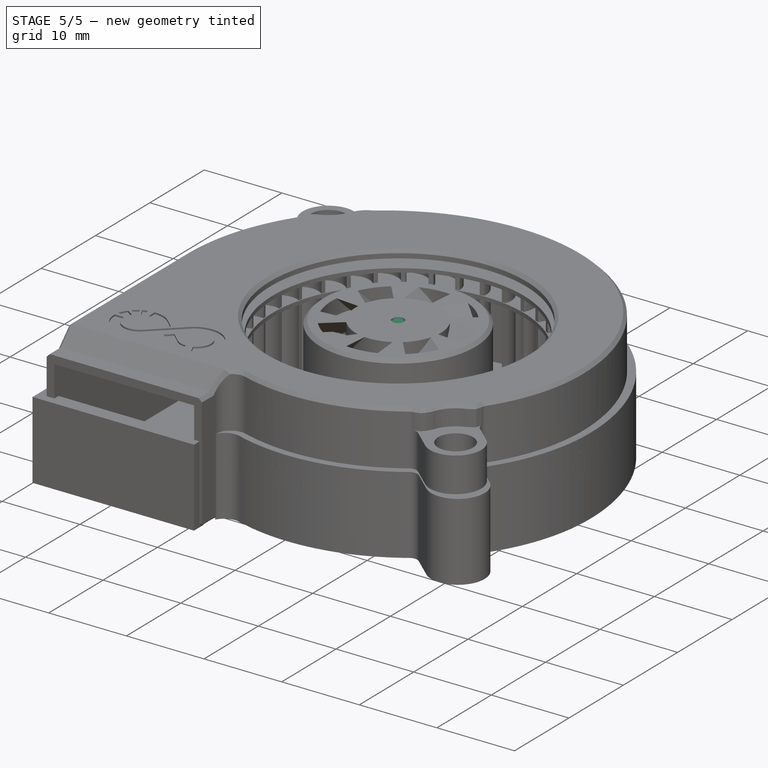
[diagram: stage 5 of 5 — iso view after this stage's code; geometry added in this stage tinted green]
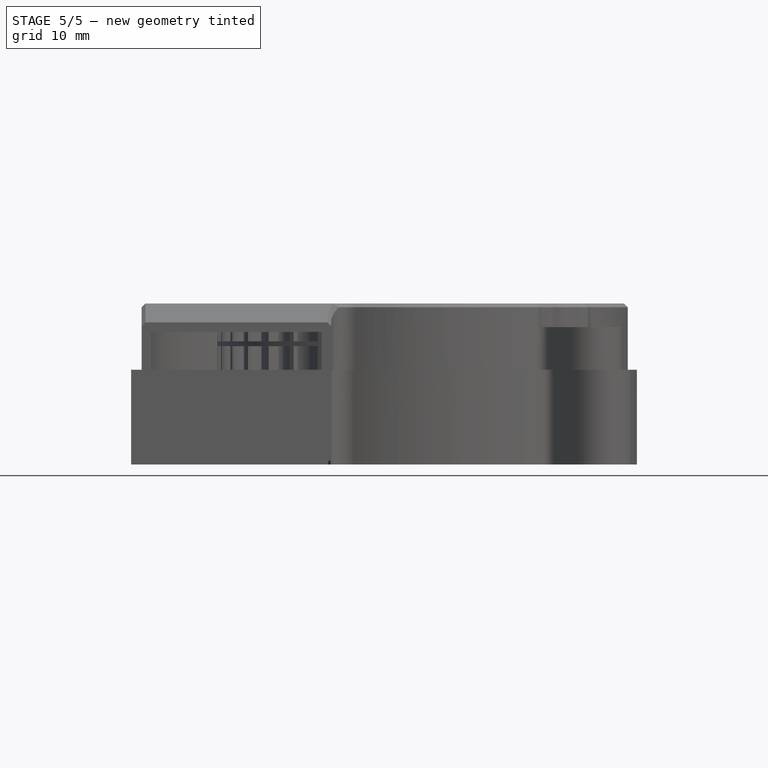
[diagram: stage 5 of 5 — front view after this stage's code; geometry added in this stage tinted green]
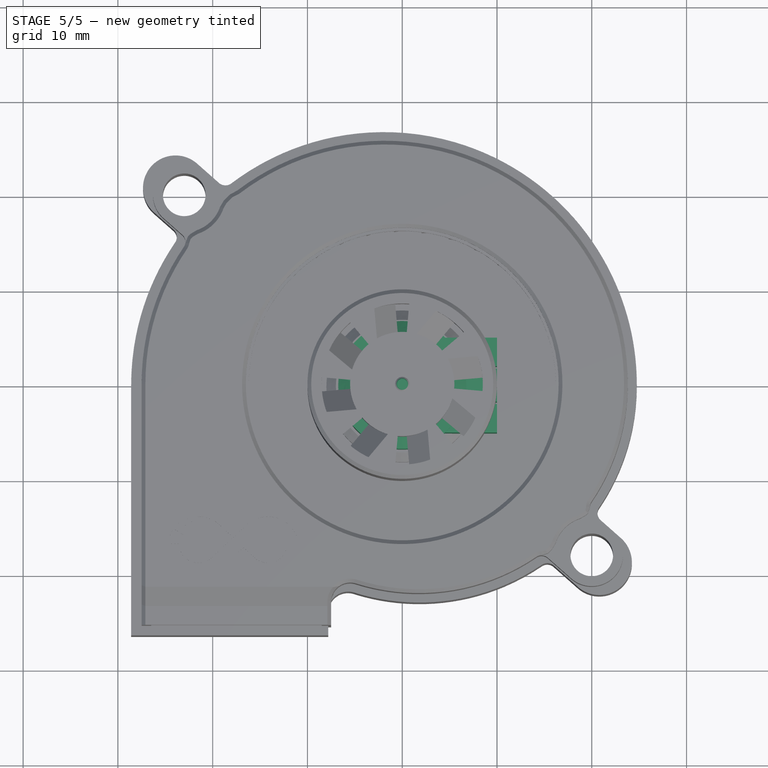
[diagram: stage 5 of 5 — top view after this stage's code; geometry added in this stage tinted green]
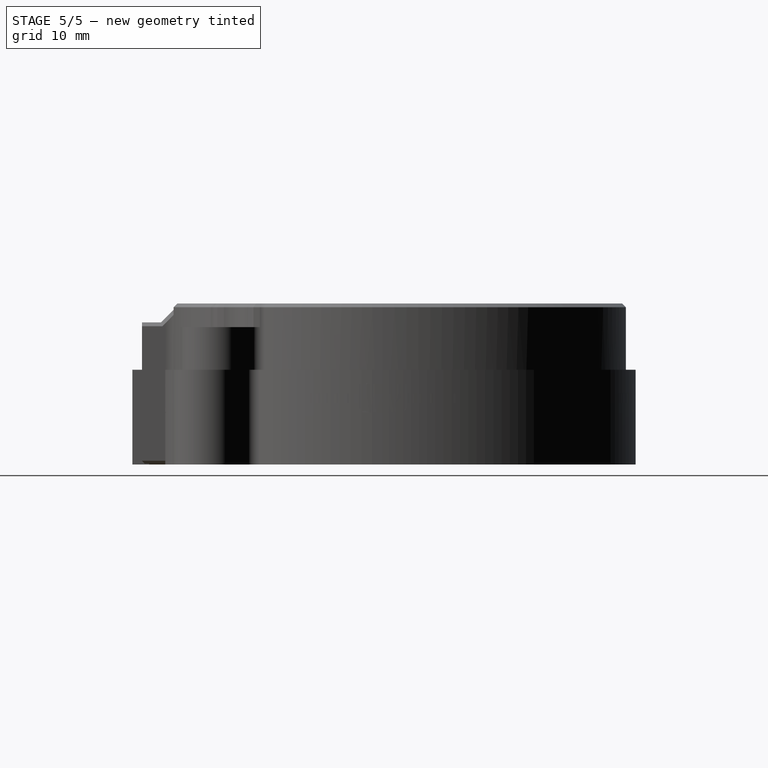
[diagram: stage 5 of 5 — right view after this stage's code; geometry added in this stage tinted green]
FEATURE [Part::Feature] Part__Feature004_cs  label="wall-base-profile"
  Placement = pos=(0,0,-4) rot=(0,0,1;0rad)
  shape: bbox 51.3 x 51.07 x 3e-07 mm, 0 faces, 0 solids (baked)
FEATURE [Part::Feature] Part__Feature004_cs001  label="wall-base-profile001"
  Placement = pos=(0,0,-3) rot=(0,0,1;0rad)
  shape: bbox 51.3 x 51.07 x 3e-07 mm, 0 faces, 0 solids (baked)
FEATURE [Sketcher::SketchObject] Sketch008
  FullyConstrained = true
  MapMode = 5
  Support = -> [XY_Plane006]
  sketch-geometry (20):
    g0: Circle CenterX=0 CenterY=0 CenterZ=0 NormalX=0 NormalY=0 NormalZ=1 AngleXU=0 Radius=4.5
    g1: LineSegment StartX=-4.5 StartY=4.5 StartZ=0 EndX=4.5 EndY=4.5 EndZ=0
    g2: LineSegment StartX=4.5 StartY=4.5 StartZ=0 EndX=4.5 EndY=-4.5 EndZ=0
    g3: LineSegment StartX=4.5 StartY=-4.5 StartZ=0 EndX=-4.5 EndY=-4.5 EndZ=0
    g4: LineSegment StartX=-4.5 StartY=-4.5 StartZ=0 EndX=-4.5 EndY=4.5 EndZ=0
    g5: Circle CenterX=0 CenterY=4.5 CenterZ=0 NormalX=0 NormalY=0 NormalZ=1 AngleXU=0 Radius=1.7
    g6: Circle CenterX=-4.5 CenterY=0 CenterZ=0 NormalX=0 NormalY=0 NormalZ=1 AngleXU=0 Radius=1.7
    g7: Circle CenterX=4.5 CenterY=0 CenterZ=0 NormalX=0 NormalY=0 NormalZ=1 AngleXU=0 Radius=1.7
    g8: Circle CenterX=0 CenterY=-4.5 CenterZ=0 NormalX=0 NormalY=0 NormalZ=1 AngleXU=0 Radius=1.7
    g9: LineSegment StartX=-4.5 StartY=1.7 StartZ=0 EndX=-1.7 EndY=1.7 EndZ=0
    g10: LineSegment StartX=-1.7 StartY=1.7 StartZ=0 EndX=-1.7 EndY=4.5 EndZ=0
    g11: LineSegment StartX=4.5 StartY=-1.7 StartZ=0 EndX=1.7 EndY=-1.7 EndZ=0
    g12: LineSegment StartX=1.7 StartY=-1.7 StartZ=0 EndX=1.7 EndY=-4.5 EndZ=0
    g13: LineSegment StartX=-1.7 StartY=-4.5 StartZ=0 EndX=-1.7 EndY=-1.7 EndZ=0
    g14: LineSegment StartX=-1.7 StartY=-1.7 StartZ=0 EndX=-4.5 EndY=-1.7 EndZ=0
    g15: ArcOfCircle CenterX=0 CenterY=-4.5 CenterZ=0 NormalX=0 NormalY=0 NormalZ=1 AngleXU=0 Radius=1.7 StartAngle=3.14159 EndAngle=6.28319
    g16: ArcOfCircle CenterX=-4.5 CenterY=0 CenterZ=0 NormalX=0 NormalY=0 NormalZ=1 AngleXU=0 Radius=1.7 StartAngle=1.5708 EndAngle=4.71239
    g17: LineSegment StartX=1.20208 StartY=5.70208 StartZ=0 EndX=5.70208 EndY=1.20208 EndZ=0
    g18: ArcOfCircle CenterX=0 CenterY=4.5 CenterZ=0 NormalX=0 NormalY=0 NormalZ=1 AngleXU=0 Radius=1.7 StartAngle=0.785398 EndAngle=3.14159
    g19: ArcOfCircle CenterX=4.5 CenterY=0 CenterZ=0 NormalX=0 NormalY=0 NormalZ=1 AngleXU=0 Radius=1.7 StartAngle=4.71239 EndAngle=7.06858
  constraints (57):
    c: Coincident(g0,g-1)
    c: Radius(g0) = 4.5
    c: Coincident(g1,g2)
    c: Coincident(g2,g3)
    c: Coincident(g3,g4)
    c: Coincident(g4,g1)
    c: Horizontal(g1)
    c: Horizontal(g3)
    c: Vertical(g2)
    c: Vertical(g4)
    c: DistanceX(g1,g1) = 9
    c: DistanceY(g2,g2) = 9
    c: DistanceY(g2,g-1) = 4.5
    c: DistanceX(g-1,g2) = 4.5
    c: PointOnObject(g5,g0)
    c: PointOnObject(g6,g0)
    c: PointOnObject(g7,g0)
    c: PointOnObject(g8,g0)
    c: Radius(g7) = 1.7
    c: Radius(g8) = 1.7
    c: Radius(g6) = 1.7
    c: Radius(g5) = 1.7
    c: DistanceX(g-1,g5) = 0
    c: DistanceY(g-1,g7) = 0
    c: DistanceX(g-1,g8) = 0
    c: DistanceY(g-1,g6) = 0
    c: PointOnObject(g9,g4)
    c: Horizontal(g9)
    c: Coincident(g10,g9)
    c: PointOnObject(g10,g1)
    c: Vertical(g10)
    c: PointOnObject(g11,g2)
    c: Horizontal(g11)
    c: PointOnObject(g12,g3)
    c: Vertical(g12)
    c: PointOnObject(g13,g3)
    c: Vertical(g13)
    c: Coincident(g14,g13)
    c: PointOnObject(g14,g4)
    c: Horizontal(g14)
    c: DistanceY(g-1,g9) = 1.7
    c: DistanceY(g11,g-1) = 1.7
    c: DistanceX(g10,g-1) = 1.7
    c: DistanceX(g13,g-1) = 1.7
    c: Coincident(g15,g8)
    c: Coincident(g15,g12)
    c: Coincident(g15,g13)
    c: Coincident(g16,g6)
    c: Coincident(g16,g9)
    c: Coincident(g16,g14)
    c: Coincident(g11,g12)
    c: Coincident(g18,g5)
    c: Coincident(g18,g10)
    c: Coincident(g19,g7)
    c: Coincident(g19,g11)
    c: Tangent(g19,g17) = 1.5708
    c: Tangent(g18,g17) = 1.5708
FEATURE [PartDesign::Pad] Pad004
  Direction = (1,1,1)
  Length = 1.5
  Length2 = 100
  Profile = -> Sketch008
  Type = 0
FEATURE [Part::Cylinder] Cylinder013
  Angle = 360
  AttacherType = Attacher::AttachEngine3D
  Height = 10
  Placement = pos=(0,4.5,0) rot=(0,0,1;0rad)
  Radius = 1
FEATURE [Part::Cylinder] Cylinder014
  Angle = 360
  AttacherType = Attacher::AttachEngine3D
  Height = 10
  Placement = pos=(4.5,0,0) rot=(0,0,1;0rad)
  Radius = 1
FEATURE [Part::Cylinder] Cylinder015
  Angle = 360
  AttacherType = Attacher::AttachEngine3D
  Height = 10
  Placement = pos=(-4.5,0,0) rot=(0,0,1;0rad)
  Radius = 1
FEATURE [Part::Cylinder] Cylinder016
  Angle = 360
  AttacherType = Attacher::AttachEngine3D
  Height = 10
  Placement = pos=(0,-4.5,0) rot=(0,0,1;0rad)
  Radius = 1
FEATURE [Part::MultiFuse] Fusion013
  Shapes = -> [Cylinder016,Cylinder015,Cylinder014,Cylinder013]
FEATURE [Part::Cylinder] Cylinder017
  Angle = 360
  AttacherType = Attacher::AttachEngine3D
  Height = 0.5
  Placement = pos=(0,0,-0.5) rot=(0,0,1;0rad)
  Radius = 2
FEATURE [PartDesign::Fillet] Fillet
  Base = -> Pad004 [Edge11,Edge2,Edge26]
  BaseFeature = -> Pad004
  Radius = 2
  SupportTransform = false
FEATURE [PartDesign::Body] Body002002003  label="1103-center"
  Group = -> [Sketch008,Pad004,Fillet]
  Origin = -> Origin006
  Tip = -> Fillet
FEATURE [Part::Feature] Body002002003001  label="1103-center001"
  shape: bbox 12.4 x 12.4 x 1.5 mm, 16 faces (baked)
FEATURE [Part::Cut] Cut007
  Base = -> Body002002003001
  Tool = -> Fusion013
FEATURE [Part::Cylinder] Cylinder018
  Angle = 360
  AttacherType = Attacher::AttachEngine3D
  Height = 15
  Placement = pos=(0,0,-1) rot=(0,0,1;0rad)
  Radius = 0.75
FEATURE [Part::Cylinder] Cylinder019
  Angle = 360
  AttacherType = Attacher::AttachEngine3D
  Height = 6.5
  Placement = pos=(0,0,3.5) rot=(0,0,1;0rad)
  Radius = 6.75
FEATURE [Part::Cylinder] Cylinder020
  Angle = 360
  AttacherType = Attacher::AttachEngine3D
  Height = 10
  Placement = pos=(0,2.5,8) rot=(0,0,1;0rad)
  Radius = 1
FEATURE [Part::Cylinder] Cylinder021
  Angle = 360
  AttacherType = Attacher::AttachEngine3D
  Height = 10
  Placement = pos=(2.5,0,8) rot=(0,0,1;0rad)
  Radius = 1
FEATURE [Part::Cylinder] Cylinder022
  Angle = 360
  AttacherType = Attacher::AttachEngine3D
  Height = 10
  Placement = pos=(0,-2.5,8) rot=(0,0,1;0rad)
  Radius = 1
FEATURE [Part::Cylinder] Cylinder023
  Angle = 360
  AttacherType = Attacher::AttachEngine3D
  Height = 10
  Placement = pos=(-2.5,0,8) rot=(0,0,1;0rad)
  Radius = 1
FEATURE [Part::MultiFuse] Fusion014
  Shapes = -> [Cylinder023,Cylinder022,Cylinder021,Cylinder020]
FEATURE [Part::Cut] Cut008
  Base = -> Cylinder019
  Tool = -> Fusion014
FEATURE [Part::Chamfer] Chamfer001
  Base = -> Cut008
  Edges = 1 edges: [Edge1 r1=2 r2=3]
FEATURE [Part::Chamfer] Chamfer002
  Base = -> Cylinder018
  Edges = 2 edges r=0.2: [Edge1,Edge3]
FEATURE [Part::Feature] Fillet001001001
  shape: bbox 2 x 10 x 10 mm, 8 faces (baked)
FEATURE [Part::Feature] Fillet001001002
  Placement = pos=(0,0,0) rot=(0,0,-1;0.523599rad)
  shape: bbox 6.403 x 9.331 x 10 mm, 8 faces (baked)
FEATURE [Part::Feature] Fillet001001003
  Placement = pos=(0,0,0) rot=(0,0,-1;1.0472rad)
  shape: bbox 9.331 x 6.403 x 10 mm, 8 faces (baked)
FEATURE [Part::Feature] Fillet001001004
  Placement = pos=(0,0,0) rot=(0,0,-1;1.5708rad)
  shape: bbox 10 x 2 x 10 mm, 8 faces (baked)
FEATURE [Part::Feature] Fillet001001005
  Placement = pos=(0,0,0) rot=(0,0,1;4.18879rad)
  shape: bbox 9.331 x 6.403 x 10 mm, 8 faces (baked)
FEATURE [Part::Feature] Fillet001001006
  Placement = pos=(0,0,0) rot=(0,0,1;3.66519rad)
  shape: bbox 6.403 x 9.331 x 10 mm, 8 faces (baked)
FEATURE [Part::Feature] Fillet001001007
  Placement = pos=(0,0,0) rot=(0,0,1;3.14159rad)
  shape: bbox 2 x 10 x 10 mm, 8 faces (baked)
FEATURE [Part::Feature] Fillet001001008
  Placement = pos=(0,0,0) rot=(0,0,1;2.61799rad)
  shape: bbox 6.403 x 9.331 x 10 mm, 8 faces (baked)
FEATURE [Part::Feature] Fillet001001009
  Placement = pos=(0,0,0) rot=(0,0,1;2.0944rad)
  shape: bbox 9.331 x 6.403 x 10 mm, 8 faces (baked)
FEATURE [Part::Feature] Fillet001001010
  Placement = pos=(0,0,0) rot=(0,0,1;1.5708rad)
  shape: bbox 10 x 2 x 10 mm, 8 faces (baked)
FEATURE [Part::Feature] Fillet001001011
  Placement = pos=(0,0,0) rot=(0,0,1;1.0472rad)
  shape: bbox 9.331 x 6.403 x 10 mm, 8 faces (baked)
FEATURE [Part::Feature] Fillet001001012
  Placement = pos=(0,0,0) rot=(0,0,1;0.523599rad)
  shape: bbox 6.403 x 9.331 x 10 mm, 8 faces (baked)
FEATURE [Part::MultiFuse] Fusion015
  Shapes = -> [Fillet001001012,Fillet001001011,Fillet001001010,Fillet001001009,Fillet001001008,Fillet001001007,Fillet001001006,Fillet001001005,Fillet001001004,Fillet001001003,Fillet001001002,Fillet001001001]
FEATURE [Part::Cut] Cut009
  Base = -> Chamfer001
  Tool = -> Fusion015
FEATURE [Part::MultiFuse] Fusion016  label="1103-brushless-PREF"
  Placement = pos=(0,0,2.5) rot=(0,0,-1;0.785398rad)
  Shapes = -> [Cut009,Chamfer002,Cut007,Cylinder017]
FEATURE [Part::Feature] Part__Feature  label="turbine"
  Placement = pos=(0,3.2,0) rot=(0,1,0;0.138121rad)
  shape: bbox 38.92 x 10.5 x 38.96 mm, 229 faces (baked)
FEATURE [Part::Feature] Part__Feature001  label="top"
  Placement = pos=(-4e-15,15,1e-15) rot=(0,0,1;0rad)
  shape: bbox 51.3 x 8 x 51.07 mm, 45 faces (baked)
FEATURE [Part::Feature] Part__Feature002  label="bottom"
  shape: bbox 52.92 x 8.501 x 51.38 mm, 117 faces (baked)
FEATURE [App::Part] bottom  label="bottom002"
  Group = -> [Part__Feature002]
  Origin = -> Origin002
FEATURE [App::Part] Radial_Cooling_Fan_5015_DC12V  label="SAMPLE"
  Group = -> [Part__Feature,Part__Feature001,bottom]
  Origin = -> Origin003
  Placement = pos=(0,0,0) rot=(1,0,0;1.5708rad)
FEATURE [Part::Feature] Body002002003005_cs  label="outer-profile"
  shape: bbox 51.3 x 51.07 x 3e-07 mm, 0 faces, 0 solids (baked)
FEATURE [Part::Feature] Clone001001  label="offset-101p"
  shape: bbox 52.84 x 77.81 x 10 mm, 20 faces (baked)
FEATURE [Part::Feature] Clone001002  label="offset 104p001"
  shape: bbox 54.41 x 80.12 x 10 mm, 20 faces (baked)
FEATURE [Part::Feature] Clone001003  label="offset 104p"
  shape: bbox 54.41 x 80.12 x 10 mm, 20 faces (baked)
FEATURE [Part::Cut] Cut034  label="outer"
  Base = -> Clone001002
  Tool = -> Clone001001
FEATURE [Part::Box] Box011  label="1-temp"
  AttacherType = Attacher::AttachEngine3D
  Height = 10
  Length = 10
  Placement = pos=(0,-1.75,0) rot=(0,0,1;0rad)
  Width = 3.5
FEATURE [Part::Box] Box012  label="Cube012"
  AttacherType = Attacher::AttachEngine3D
  Height = 10
  Length = 10
  Placement = pos=(0,-2,0) rot=(0,0,1;0rad)
  Width = 4
FEATURE [Part::Box] Box013  label="Cube013"
  AttacherType = Attacher::AttachEngine3D
  Height = 10
  Length = 10
  Placement = pos=(0,-5,0) rot=(0,0,1;0rad)
  Width = 10
FEATURE [Part::Cut] Cut036  label="2-temp"
  Base = -> Box013
  Tool = -> Box012
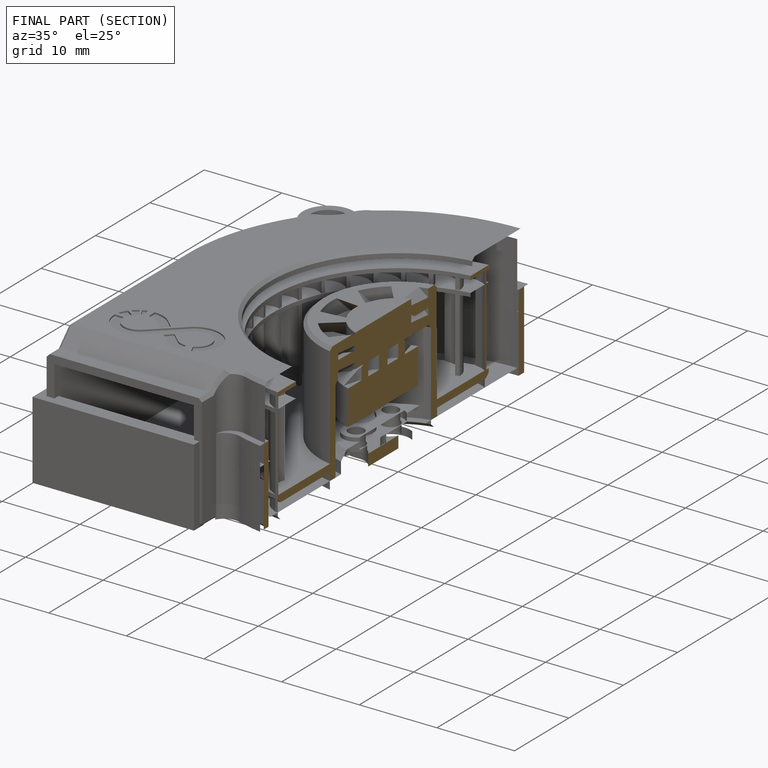
[diagram: finished part — half-section view (interior)]
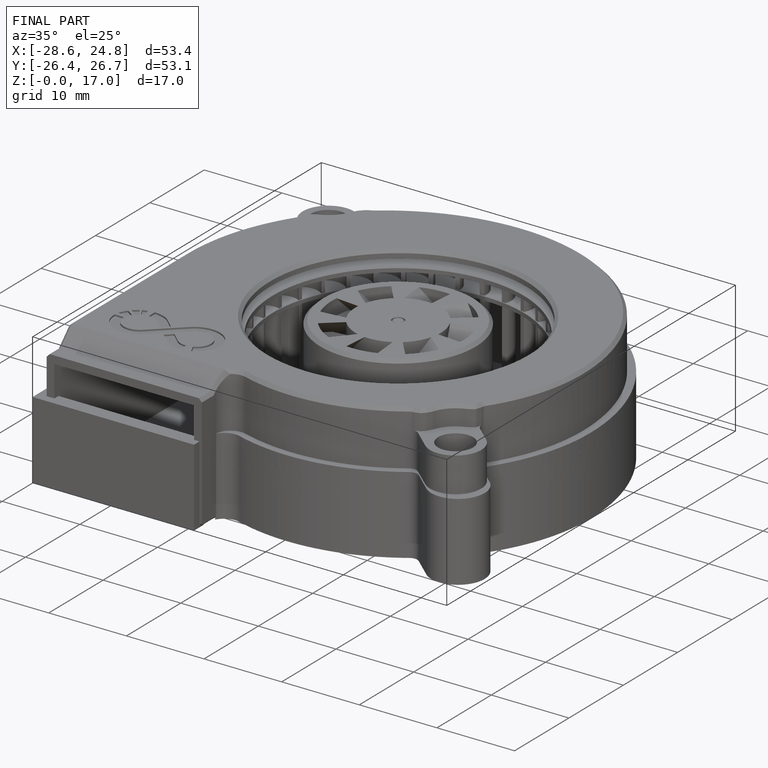
[diagram: finished part — iso view with bounding-box wireframe]
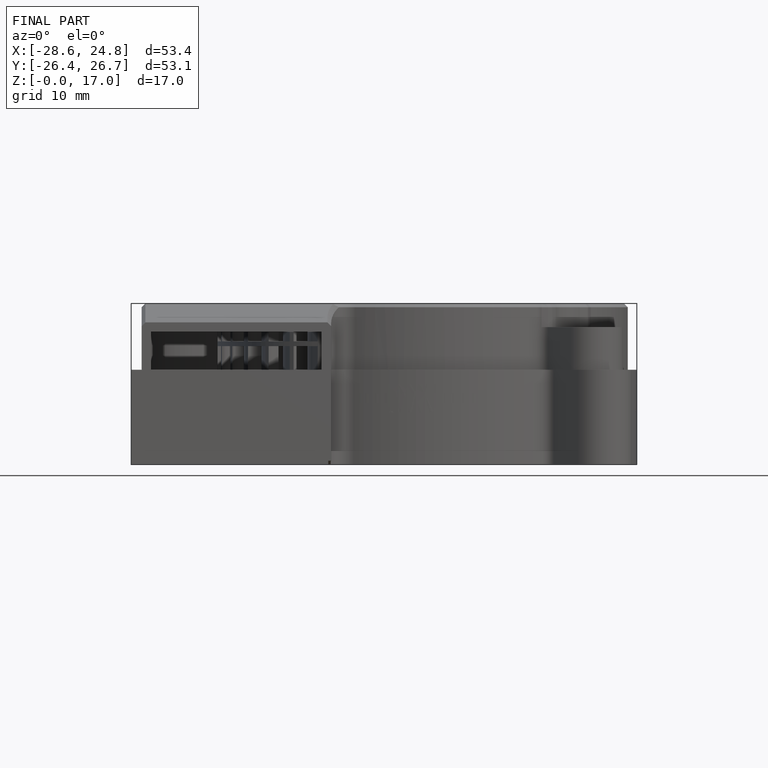
[diagram: finished part — front view with bounding-box wireframe]
